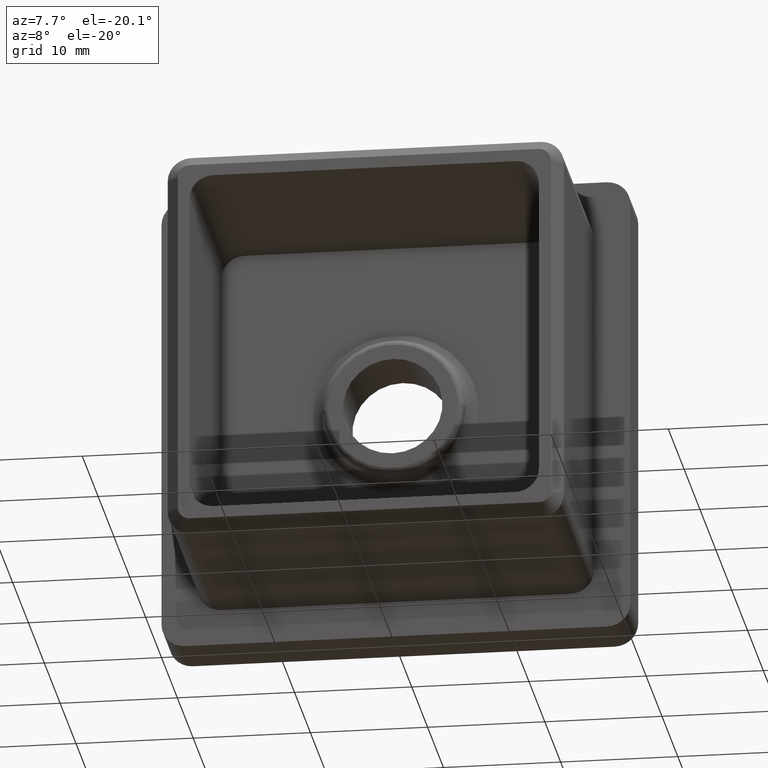
[diagram: clean part render]
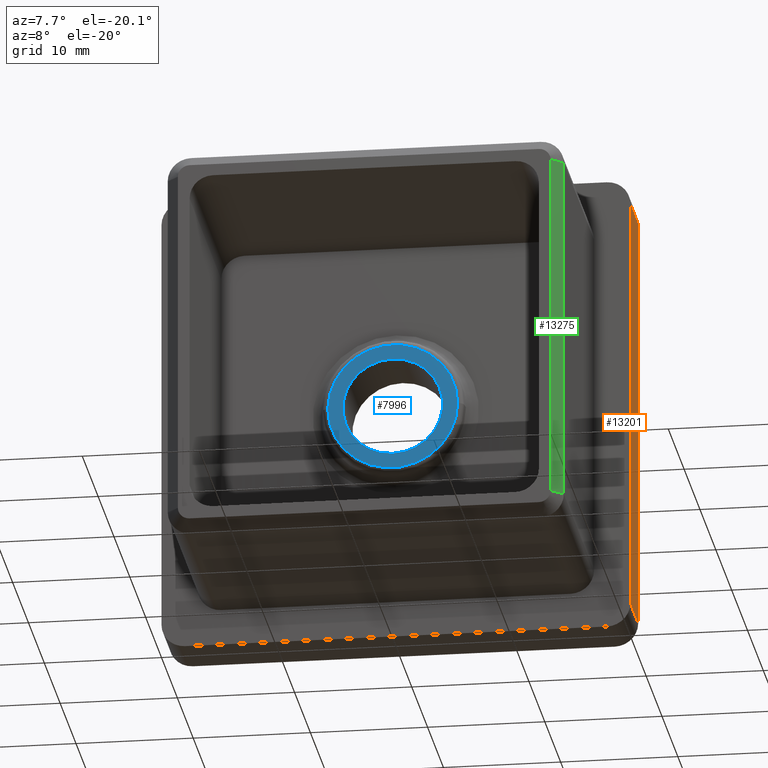
[diagram: same view with three faces highlighted in distinct colors, each labeled with its STEP entity id]
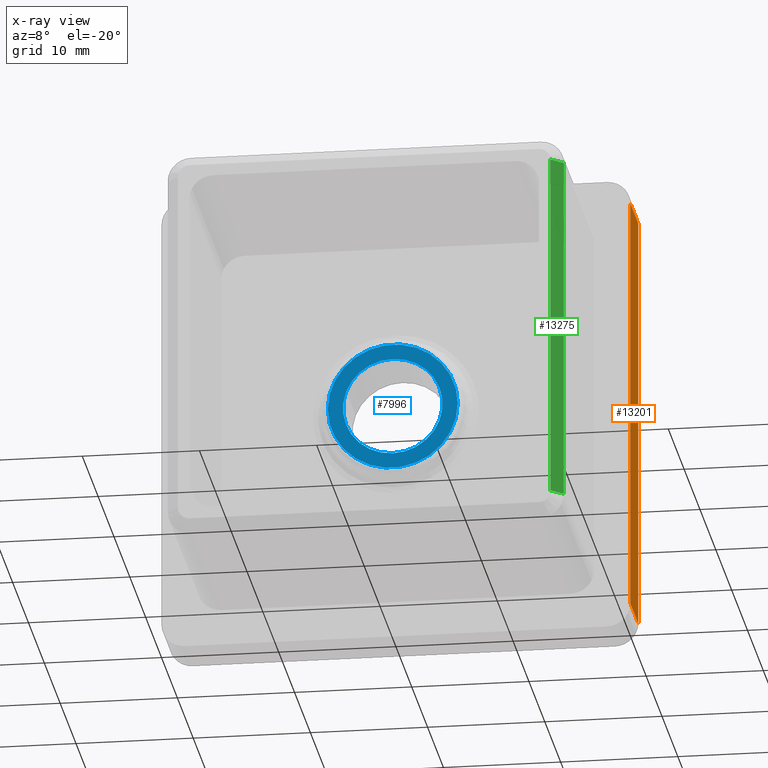
[diagram: x-ray of the same camera — body ghosted, the three highlighted faces saturated]
A machine part, auxiliary view with three faces highlighted in distinct colors.
The next image is the same camera in x-ray (body ghosted, the three faces saturated) — at least one of them is partly hidden behind the body in this view.
Their STEP definitions:

[orange] entity #13201 — the highlighted planar face has unit normal (-1, 0, 0).
#482 = AXIS2_PLACEMENT_3D ( 'NONE', #17371, #14673, #3470 ) ;
#545 = LINE ( 'NONE', #16024, #13994 ) ;
#785 = DIRECTION ( 'NONE',  ( -1.734723475976807100E-016, -0.0000000000000000000, -1.000000000000000000 ) ) ;
#2920 = LINE ( 'NONE', #16308, #17024 ) ;
#3470 = DIRECTION ( 'NONE',  ( 1.734723475976807100E-016, 0.0000000000000000000, 1.000000000000000000 ) ) ;
#4388 = CARTESIAN_POINT ( 'NONE',  ( 19.99999999999999600, 0.0000000000000000000, -17.99999999999999600 ) ) ;
#4451 = EDGE_CURVE ( 'NONE', #10930, #5320, #545, .T. ) ;
#5272 = ORIENTED_EDGE ( 'NONE', *, *, #9708, .T. ) ;
#5320 = VERTEX_POINT ( 'NONE', #4388 ) ;
#6032 = LINE ( 'NONE', #10938, #13386 ) ;
#6167 = EDGE_LOOP ( 'NONE', ( #13531, #10077, #16374, #5272 ) ) ;
#7482 = CARTESIAN_POINT ( 'NONE',  ( 20.00000000000000400, 0.0000000000000000000, 18.00000000000000400 ) ) ;
#7720 = PLANE ( 'NONE',  #482 ) ;
#7745 = VERTEX_POINT ( 'NONE', #14659 ) ;
#8325 = DIRECTION ( 'NONE',  ( -1.734723475976807100E-016, -0.0000000000000000000, -1.000000000000000000 ) ) ;
#8489 = LINE ( 'NONE', #12648, #15833 ) ;
#9708 = EDGE_CURVE ( 'NONE', #7745, #10930, #2920, .T. ) ;
#9738 = DIRECTION ( 'NONE',  ( 0.0000000000000000000, -1.000000000000000000, 0.0000000000000000000 ) ) ;
#10077 = ORIENTED_EDGE ( 'NONE', *, *, #17719, .T. ) ;
#10930 = VERTEX_POINT ( 'NONE', #7482 ) ;
#10938 = CARTESIAN_POINT ( 'NONE',  ( 19.99999999999999600, 5.000000000000000000, -17.99999999999999600 ) ) ;
#11484 = FACE_OUTER_BOUND ( 'NONE', #6167, .T. ) ;
#11724 = VERTEX_POINT ( 'NONE', #17571 ) ;
#12648 = CARTESIAN_POINT ( 'NONE',  ( 19.99999999999999600, 5.000000000000000000, -19.99999999999999600 ) ) ;
#13201 = ADVANCED_FACE ( 'NONE', ( #11484 ), #7720, .F. ) ;
#13386 = VECTOR ( 'NONE', #14926, 1000.000000000000000 ) ;
#13531 = ORIENTED_EDGE ( 'NONE', *, *, #4451, .T. ) ;
#13994 = VECTOR ( 'NONE', #785, 1000.000000000000000 ) ;
#14333 = EDGE_CURVE ( 'NONE', #7745, #11724, #8489, .T. ) ;
#14659 = CARTESIAN_POINT ( 'NONE',  ( 20.00000000000000400, 5.000000000000000000, 18.00000000000000400 ) ) ;
#14673 = DIRECTION ( 'NONE',  ( -1.000000000000000000, 0.0000000000000000000, 1.734723475976807100E-016 ) ) ;
#14926 = DIRECTION ( 'NONE',  ( -0.0000000000000000000, 1.000000000000000000, -0.0000000000000000000 ) ) ;
#15833 = VECTOR ( 'NONE', #8325, 1000.000000000000000 ) ;
#16024 = CARTESIAN_POINT ( 'NONE',  ( 19.99999999999999600, 0.0000000000000000000, -19.99999999999999600 ) ) ;
#16308 = CARTESIAN_POINT ( 'NONE',  ( 20.00000000000000400, 5.000000000000000000, 18.00000000000000400 ) ) ;
#16374 = ORIENTED_EDGE ( 'NONE', *, *, #14333, .F. ) ;
#17024 = VECTOR ( 'NONE', #9738, 1000.000000000000000 ) ;
#17371 = CARTESIAN_POINT ( 'NONE',  ( 19.99999999999999600, 5.000000000000000000, -19.99999999999999600 ) ) ;
#17571 = CARTESIAN_POINT ( 'NONE',  ( 19.99999999999999600, 5.000000000000000000, -17.99999999999999600 ) ) ;
#17719 = EDGE_CURVE ( 'NONE', #5320, #11724, #6032, .T. ) ;

[blue] entity #7996 — the highlighted planar face has unit normal (-0, 1, 0).
#78 = EDGE_LOOP ( 'NONE', ( #1367, #14866 ) ) ;
#277 = DIRECTION ( 'NONE',  ( 1.224646799147353500E-016, -1.000000000000000000, 0.0000000000000000000 ) ) ;
#547 = AXIS2_PLACEMENT_3D ( 'NONE', #11144, #277, #15388 ) ;
#1241 = EDGE_CURVE ( 'NONE', #1740, #3983, #14674, .T. ) ;
#1367 = ORIENTED_EDGE ( 'NONE', *, *, #3217, .T. ) ;
#1717 = DIRECTION ( 'NONE',  ( -1.224646799147353500E-016, 1.000000000000000000, 0.0000000000000000000 ) ) ;
#1740 = VERTEX_POINT ( 'NONE', #5219 ) ;
#2444 = AXIS2_PLACEMENT_3D ( 'NONE', #18017, #16731, #11078 ) ;
#2510 = FACE_OUTER_BOUND ( 'NONE', #78, .T. ) ;
#2797 = EDGE_LOOP ( 'NONE', ( #6428, #6528 ) ) ;
#3213 = CARTESIAN_POINT ( 'NONE',  ( -5.541834412991285300, -2.000000000000001300, 0.0000000000000000000 ) ) ;
#3217 = EDGE_CURVE ( 'NONE', #17363, #9390, #3614, .T. ) ;
#3614 = CIRCLE ( 'NONE', #8235, 5.541834412991285300 ) ;
#3983 = VERTEX_POINT ( 'NONE', #4537 ) ;
#4262 = CIRCLE ( 'NONE', #547, 5.541834412991285300 ) ;
#4537 = CARTESIAN_POINT ( 'NONE',  ( 2.449293598294707400E-016, -2.000000000000000400, -4.249999999999996400 ) ) ;
#4876 = EDGE_CURVE ( 'NONE', #9390, #17363, #4262, .T. ) ;
#5102 = DIRECTION ( 'NONE',  ( 1.224646799147353500E-016, -1.000000000000000000, 0.0000000000000000000 ) ) ;
#5219 = CARTESIAN_POINT ( 'NONE',  ( 7.654042494670953700E-016, -2.000000000000000400, 4.249999999999996400 ) ) ;
#5336 = DIRECTION ( 'NONE',  ( -0.0000000000000000000, -1.000000000000000000, -0.0000000000000000000 ) ) ;
#6129 = CARTESIAN_POINT ( 'NONE',  ( 5.541834412991285300, -1.999999999999999600, 7.091786437360833800E-016 ) ) ;
#6428 = ORIENTED_EDGE ( 'NONE', *, *, #14176, .F. ) ;
#6520 = CIRCLE ( 'NONE', #9349, 4.249999999999996400 ) ;
#6528 = ORIENTED_EDGE ( 'NONE', *, *, #1241, .F. ) ;
#7765 = DIRECTION ( 'NONE',  ( -1.000000000000000000, -1.565116662372870400E-016, 0.0000000000000000000 ) ) ;
#7939 = FACE_BOUND ( 'NONE', #2797, .T. ) ;
#7996 = ADVANCED_FACE ( 'NONE', ( #7939, #2510 ), #15598, .F. ) ;
#8235 = AXIS2_PLACEMENT_3D ( 'NONE', #11919, #5102, #7765 ) ;
#8602 = DIRECTION ( 'NONE',  ( -1.000000000000000000, -1.224646799147353500E-016, 0.0000000000000000000 ) ) ;
#9349 = AXIS2_PLACEMENT_3D ( 'NONE', #9512, #5336, #14996 ) ;
#9390 = VERTEX_POINT ( 'NONE', #6129 ) ;
#9512 = CARTESIAN_POINT ( 'NONE',  ( 2.449293598294707400E-016, -2.000000000000000400, 0.0000000000000000000 ) ) ;
#10343 = AXIS2_PLACEMENT_3D ( 'NONE', #11473, #1717, #8602 ) ;
#11078 = DIRECTION ( 'NONE',  ( 0.0000000000000000000, 0.0000000000000000000, -1.000000000000000000 ) ) ;
#11144 = CARTESIAN_POINT ( 'NONE',  ( 2.449293598294707900E-016, -2.000000000000000400, 0.0000000000000000000 ) ) ;
#11473 = CARTESIAN_POINT ( 'NONE',  ( 2.449293598294707400E-016, -2.000000000000000400, 0.0000000000000000000 ) ) ;
#11919 = CARTESIAN_POINT ( 'NONE',  ( 2.449293598294707900E-016, -2.000000000000000400, 0.0000000000000000000 ) ) ;
#14176 = EDGE_CURVE ( 'NONE', #3983, #1740, #6520, .T. ) ;
#14674 = CIRCLE ( 'NONE', #2444, 4.249999999999996400 ) ;
#14866 = ORIENTED_EDGE ( 'NONE', *, *, #4876, .T. ) ;
#14996 = DIRECTION ( 'NONE',  ( 0.0000000000000000000, 0.0000000000000000000, -1.000000000000000000 ) ) ;
#15388 = DIRECTION ( 'NONE',  ( -1.000000000000000000, -1.565116662372870400E-016, 0.0000000000000000000 ) ) ;
#15598 = PLANE ( 'NONE',  #10343 ) ;
#16731 = DIRECTION ( 'NONE',  ( -0.0000000000000000000, -1.000000000000000000, -0.0000000000000000000 ) ) ;
#17363 = VERTEX_POINT ( 'NONE', #3213 ) ;
#18017 = CARTESIAN_POINT ( 'NONE',  ( 2.449293598294707400E-016, -2.000000000000000400, 0.0000000000000000000 ) ) ;

[green] entity #13275 — the highlighted planar face has unit normal (0.7071, -0.7071, 0).
#441 = CARTESIAN_POINT ( 'NONE',  ( 16.90000000000000600, -18.99999999999998600, 14.90000000000000600 ) ) ;
#1250 = EDGE_CURVE ( 'NONE', #3463, #1521, #5587, .T. ) ;
#1521 = VERTEX_POINT ( 'NONE', #6935 ) ;
#1652 = CARTESIAN_POINT ( 'NONE',  ( 15.89999999999999700, -20.00000000000000000, 14.90000000000000600 ) ) ;
#2502 = CARTESIAN_POINT ( 'NONE',  ( 15.89999999999999700, -20.00000000000000000, 0.0000000000000000000 ) ) ;
#3060 = CARTESIAN_POINT ( 'NONE',  ( 15.89999999999999700, -20.00000000000000000, -14.90000000000000400 ) ) ;
#3463 = VERTEX_POINT ( 'NONE', #441 ) ;
#3803 = DIRECTION ( 'NONE',  ( -0.7071067811865451300, -0.7071067811865500200, 0.0000000000000000000 ) ) ;
#3896 = DIRECTION ( 'NONE',  ( 0.7071067811865500200, -0.7071067811865451300, 0.0000000000000000000 ) ) ;
#4107 = DIRECTION ( 'NONE',  ( 0.0000000000000000000, 0.0000000000000000000, 1.000000000000000000 ) ) ;
#4296 = EDGE_CURVE ( 'NONE', #3463, #10736, #4462, .T. ) ;
#4462 = LINE ( 'NONE', #11726, #10304 ) ;
#5100 = LINE ( 'NONE', #17653, #13101 ) ;
#5587 = LINE ( 'NONE', #15256, #10548 ) ;
#5856 = ORIENTED_EDGE ( 'NONE', *, *, #1250, .F. ) ;
#5956 = ORIENTED_EDGE ( 'NONE', *, *, #4296, .T. ) ;
#6216 = DIRECTION ( 'NONE',  ( 0.7071067811865451300, 0.7071067811865500200, 0.0000000000000000000 ) ) ;
#6935 = CARTESIAN_POINT ( 'NONE',  ( 16.90000000000000600, -18.99999999999998600, -14.90000000000000400 ) ) ;
#6939 = EDGE_LOOP ( 'NONE', ( #15324, #5856, #5956, #11656 ) ) ;
#8708 = VERTEX_POINT ( 'NONE', #3060 ) ;
#8870 = CARTESIAN_POINT ( 'NONE',  ( 15.89999999999999700, -20.00000000000000000, -14.90000000000000400 ) ) ;
#9656 = EDGE_CURVE ( 'NONE', #8708, #10736, #5100, .T. ) ;
#9811 = DIRECTION ( 'NONE',  ( 0.0000000000000000000, 0.0000000000000000000, -1.000000000000000000 ) ) ;
#10304 = VECTOR ( 'NONE', #3803, 1000.000000000000100 ) ;
#10512 = EDGE_CURVE ( 'NONE', #8708, #1521, #17674, .T. ) ;
#10548 = VECTOR ( 'NONE', #9811, 1000.000000000000000 ) ;
#10671 = DIRECTION ( 'NONE',  ( 0.0000000000000000000, 0.0000000000000000000, -1.000000000000000000 ) ) ;
#10736 = VERTEX_POINT ( 'NONE', #1652 ) ;
#11656 = ORIENTED_EDGE ( 'NONE', *, *, #9656, .F. ) ;
#11726 = CARTESIAN_POINT ( 'NONE',  ( 16.90000000000000600, -18.99999999999998600, 14.90000000000000600 ) ) ;
#12342 = AXIS2_PLACEMENT_3D ( 'NONE', #2502, #3896, #10671 ) ;
#13101 = VECTOR ( 'NONE', #4107, 1000.000000000000000 ) ;
#13237 = FACE_OUTER_BOUND ( 'NONE', #6939, .T. ) ;
#13275 = ADVANCED_FACE ( 'NONE', ( #13237 ), #14785, .T. ) ;
#14785 = PLANE ( 'NONE',  #12342 ) ;
#14818 = VECTOR ( 'NONE', #6216, 1000.000000000000100 ) ;
#15256 = CARTESIAN_POINT ( 'NONE',  ( 16.90000000000000600, -18.99999999999998600, -14.90000000000000400 ) ) ;
#15324 = ORIENTED_EDGE ( 'NONE', *, *, #10512, .T. ) ;
#17653 = CARTESIAN_POINT ( 'NONE',  ( 15.89999999999999700, -20.00000000000000000, 14.90000000000000600 ) ) ;
#17674 = LINE ( 'NONE', #8870, #14818 ) ;